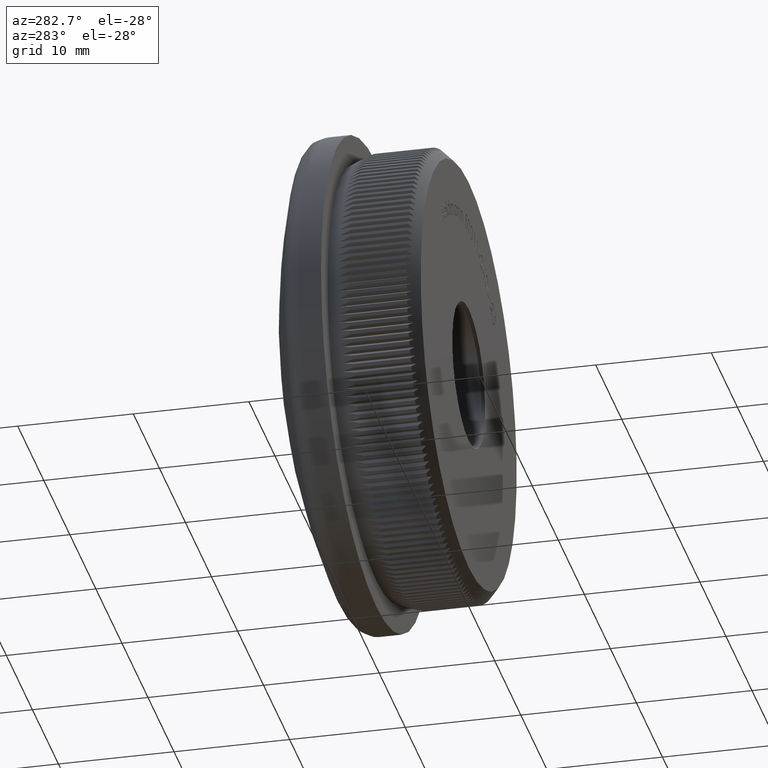
[diagram: clean part render]
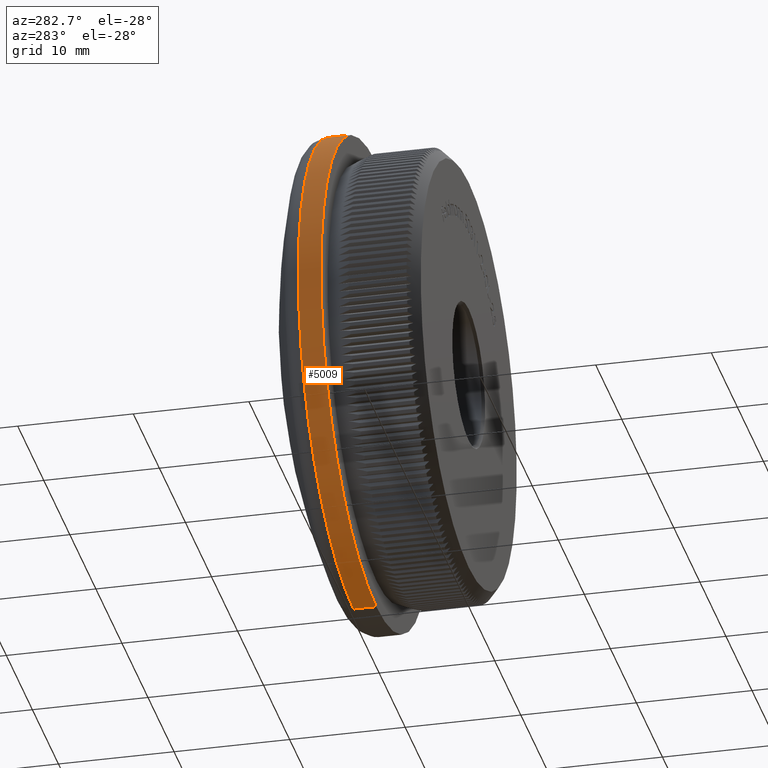
[diagram: same view with one face highlighted and labeled with its STEP entity id]
A machine part, auxiliary view. The second image highlights one B-rep face of the part: STEP entity #5009.
In plain terms, the highlighted cylindrical surface (partial cylindrical patch) has radius 21.2 mm, axis along (-0, -1, -0).
Its self-contained STEP definition (entity closure, byte-faithful):
#136 = DIRECTION ( 'NONE',  ( -0.0000000000000000000, -1.000000000000000000, -0.0000000000000000000 ) ) ;
#718 = FACE_OUTER_BOUND ( 'NONE', #8002, .T. ) ;
#2406 = VERTEX_POINT ( 'NONE', #12454 ) ;
#3378 = VERTEX_POINT ( 'NONE', #6986 ) ;
#4263 = AXIS2_PLACEMENT_3D ( 'NONE', #10129, #136, #17529 ) ;
#4572 = ORIENTED_EDGE ( 'NONE', *, *, #21227, .T. ) ;
#5009 = ADVANCED_FACE ( 'NONE', ( #718 ), #14438, .T. ) ;
#6170 = DIRECTION ( 'NONE',  ( -0.0000000000000000000, -1.000000000000000000, -0.0000000000000000000 ) ) ;
#6964 = AXIS2_PLACEMENT_3D ( 'NONE', #20706, #6170, #30789 ) ;
#6986 = CARTESIAN_POINT ( 'NONE',  ( 2.596251214192389200E-015, 9.966330070852492900, 21.20000000000000300 ) ) ;
#8002 = EDGE_LOOP ( 'NONE', ( #26050, #22400, #4572, #18094 ) ) ;
#8632 = LINE ( 'NONE', #25353, #23464 ) ;
#10129 = CARTESIAN_POINT ( 'NONE',  ( 0.0000000000000000000, 9.966330070852492900, 0.0000000000000000000 ) ) ;
#10148 = DIRECTION ( 'NONE',  ( -0.0000000000000000000, -1.000000000000000000, -0.0000000000000000000 ) ) ;
#10291 = CARTESIAN_POINT ( 'NONE',  ( 2.596251214192388800E-015, 8.000000000000000000, 21.19999999999999900 ) ) ;
#12454 = CARTESIAN_POINT ( 'NONE',  ( 0.0000000000000000000, 9.966330070852492900, -21.20000000000000300 ) ) ;
#13571 = CARTESIAN_POINT ( 'NONE',  ( 0.0000000000000000000, 8.000000000000000000, -21.19999999999999900 ) ) ;
#14141 = VERTEX_POINT ( 'NONE', #13571 ) ;
#14438 = CYLINDRICAL_SURFACE ( 'NONE', #27652, 21.20000000000000300 ) ;
#14735 = CIRCLE ( 'NONE', #6964, 21.19999999999999900 ) ;
#17265 = EDGE_CURVE ( 'NONE', #3378, #2406, #22070, .T. ) ;
#17529 = DIRECTION ( 'NONE',  ( 0.0000000000000000000, 0.0000000000000000000, -1.000000000000000000 ) ) ;
#18094 = ORIENTED_EDGE ( 'NONE', *, *, #31150, .F. ) ;
#20706 = CARTESIAN_POINT ( 'NONE',  ( 0.0000000000000000000, 8.000000000000000000, 0.0000000000000000000 ) ) ;
#21227 = EDGE_CURVE ( 'NONE', #2406, #14141, #27193, .T. ) ;
#21453 = DIRECTION ( 'NONE',  ( -0.0000000000000000000, -1.000000000000000000, -0.0000000000000000000 ) ) ;
#22070 = CIRCLE ( 'NONE', #4263, 21.20000000000000300 ) ;
#22393 = DIRECTION ( 'NONE',  ( 0.0000000000000000000, 0.0000000000000000000, -1.000000000000000000 ) ) ;
#22400 = ORIENTED_EDGE ( 'NONE', *, *, #17265, .T. ) ;
#23464 = VECTOR ( 'NONE', #10148, 1000.000000000000000 ) ;
#25353 = CARTESIAN_POINT ( 'NONE',  ( 2.596251214192389200E-015, 0.0000000000000000000, 21.20000000000000300 ) ) ;
#26050 = ORIENTED_EDGE ( 'NONE', *, *, #27459, .F. ) ;
#26406 = VECTOR ( 'NONE', #21453, 1000.000000000000000 ) ;
#26430 = CARTESIAN_POINT ( 'NONE',  ( 0.0000000000000000000, 0.0000000000000000000, -21.20000000000000300 ) ) ;
#27193 = LINE ( 'NONE', #26430, #26406 ) ;
#27459 = EDGE_CURVE ( 'NONE', #3378, #29151, #8632, .T. ) ;
#27652 = AXIS2_PLACEMENT_3D ( 'NONE', #29966, #27780, #22393 ) ;
#27780 = DIRECTION ( 'NONE',  ( -0.0000000000000000000, -1.000000000000000000, -0.0000000000000000000 ) ) ;
#29151 = VERTEX_POINT ( 'NONE', #10291 ) ;
#29966 = CARTESIAN_POINT ( 'NONE',  ( 0.0000000000000000000, 0.0000000000000000000, 0.0000000000000000000 ) ) ;
#30789 = DIRECTION ( 'NONE',  ( 0.0000000000000000000, 0.0000000000000000000, -1.000000000000000000 ) ) ;
#31150 = EDGE_CURVE ( 'NONE', #29151, #14141, #14735, .T. ) ;